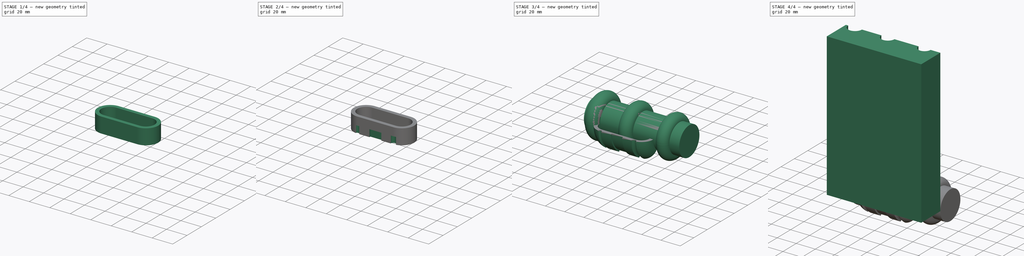
[diagram: build sequence overview — one tinted view per stage of 4, left to right]
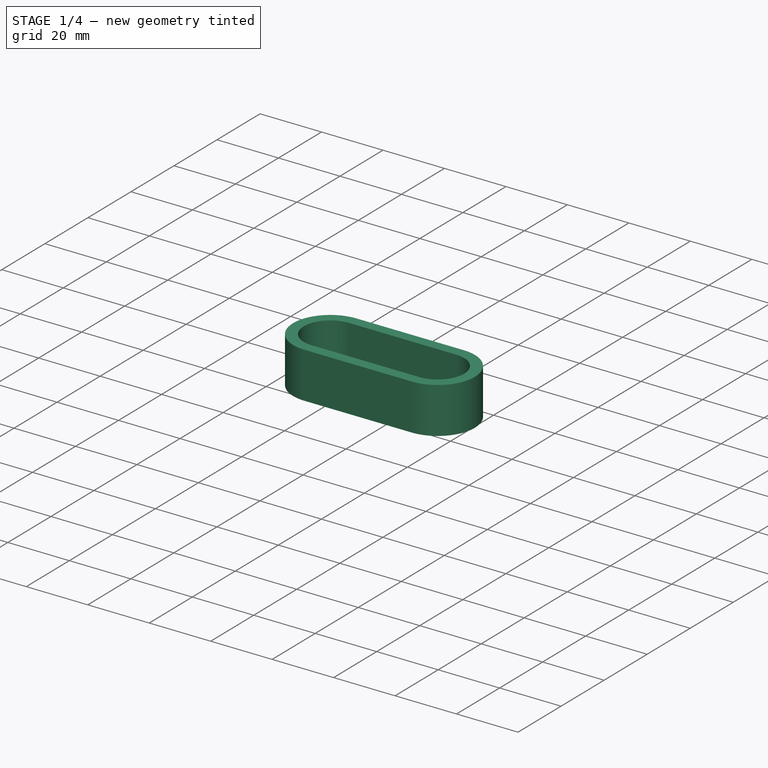
[diagram: stage 1 of 4 — iso view after this stage's code; geometry added in this stage tinted green]
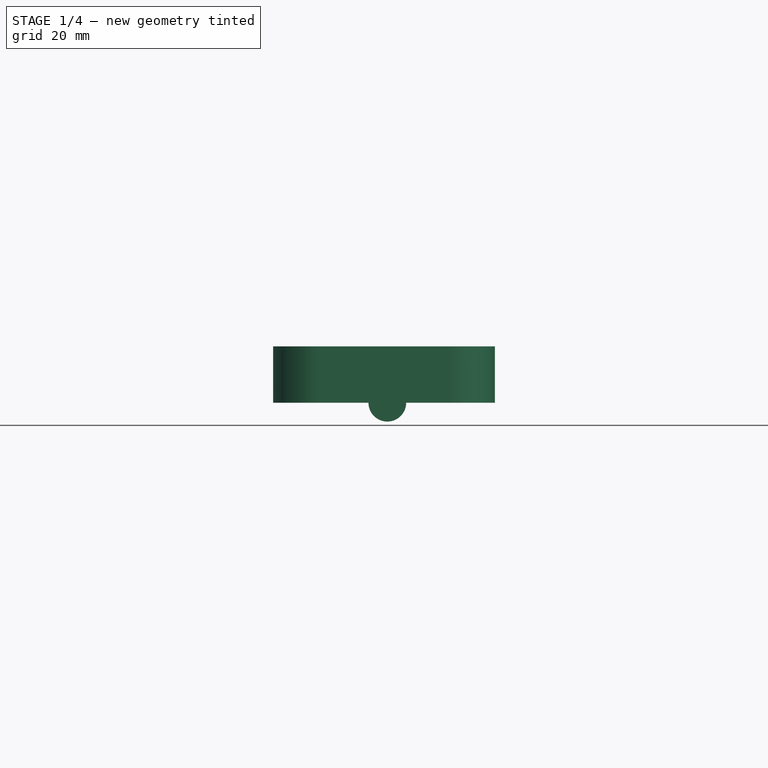
[diagram: stage 1 of 4 — front view after this stage's code; geometry added in this stage tinted green]
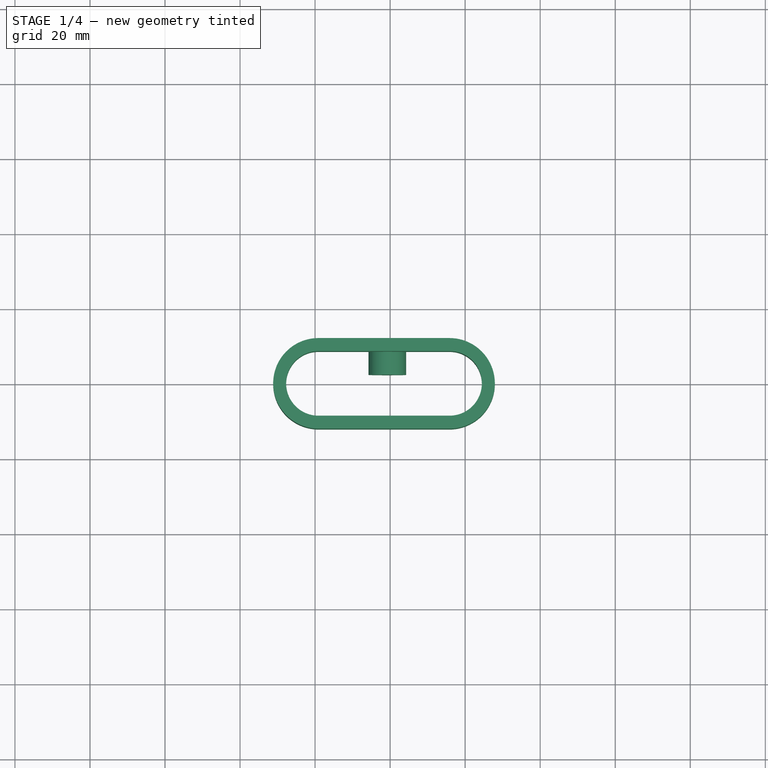
[diagram: stage 1 of 4 — top view after this stage's code; geometry added in this stage tinted green]
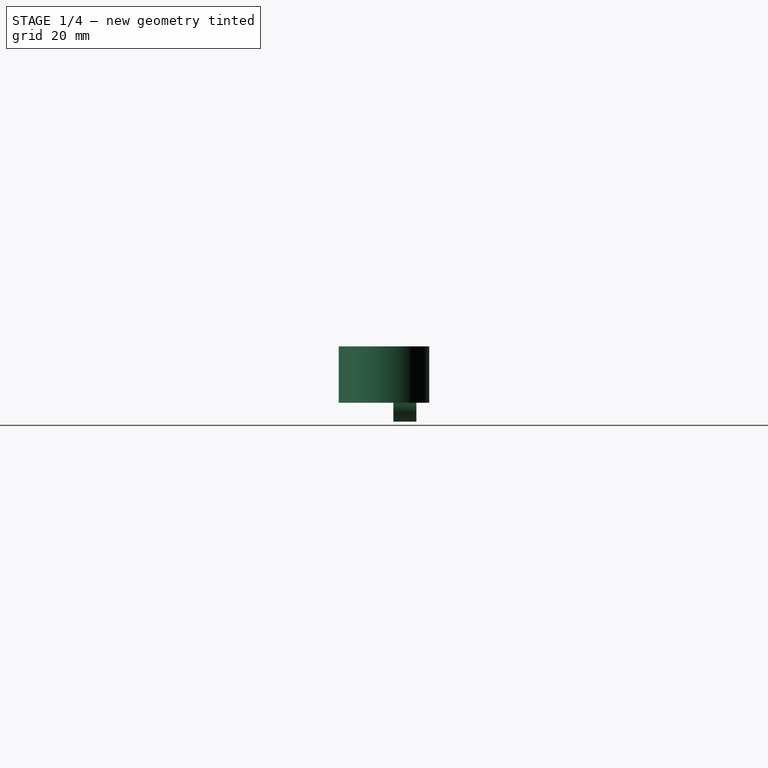
[diagram: stage 1 of 4 — right view after this stage's code; geometry added in this stage tinted green]
FCSTD DOCUMENT  (FreeCAD 0.21RUnknown)
Label: part8.2
License: All rights reserved
LicenseURL: http://en.wikipedia.org/wiki/All_rights_reserved
objects: Part::FeaturePython×12, Sketcher::SketchObject×7, Part::Revolution×5, Part::Extrusion×3, Part::Feature×3, PartDesign::SubShapeBinder×2, Part::Cut×2, Image::ImagePlane×1, App::DocumentObjectGroup×1, Part::Loft×1, Part::Compound×1, Part::Sphere×1
note: 37 computed .brp shape members not serialized (recipe doc carries the construction recipe); baked Part::Feature solids carry a one-line shape summary decoded from their .brp

FEATURE [Sketcher::SketchObject] Sketch004
  FullyConstrained = false
  sketch-geometry (8):
    g0: ArcOfCircle CenterX=-19.0999 CenterY=0 CenterZ=0 NormalX=0 NormalY=0 NormalZ=1 AngleXU=0 Radius=12.0754 StartAngle=1.5708 EndAngle=4.71239
    g1: ArcOfCircle CenterX=15.8367 CenterY=-3e-16 CenterZ=0 NormalX=0 NormalY=0 NormalZ=1 AngleXU=0 Radius=12.0754 StartAngle=4.71239 EndAngle=7.85398
    g2: LineSegment StartX=-19.0999 StartY=-12.0754 StartZ=0 EndX=15.8367 EndY=-12.0754 EndZ=0
    g3: LineSegment StartX=15.8367 StartY=12.0754 StartZ=0 EndX=-19.0999 EndY=12.0754 EndZ=0
    g4: ArcOfCircle CenterX=-19.0999 CenterY=0 CenterZ=0 NormalX=0 NormalY=0 NormalZ=1 AngleXU=0 Radius=8.61517 StartAngle=1.5708 EndAngle=4.71239
    g5: ArcOfCircle CenterX=15.8367 CenterY=-3e-16 CenterZ=0 NormalX=0 NormalY=0 NormalZ=1 AngleXU=0 Radius=8.61517 StartAngle=4.71239 EndAngle=7.85398
    g6: LineSegment StartX=-19.0999 StartY=-8.61517 StartZ=0 EndX=15.8367 EndY=-8.61517 EndZ=0
    g7: LineSegment StartX=15.8367 StartY=8.61517 StartZ=0 EndX=-19.0999 EndY=8.61517 EndZ=0
  constraints (14):
    c: Tangent(g0,g2) = -1.5708
    c: Tangent(g2,g1) = -1.5708
    c: Tangent(g1,g3) = -1.5708
    c: Tangent(g3,g0) = -1.5708
    c: Equal(g0,g1)
    c: Horizontal(g2)
    c: Tangent(g4,g6) = -1.5708
    c: Tangent(g6,g5) = -1.5708
    c: Tangent(g5,g7) = -1.5708
    c: Tangent(g7,g4) = -1.5708
    c: Equal(g4,g5)
    c: Coincident(g4,g0)
    c: Coincident(g5,g1)
    c: PointOnObject(g0,g-1)
FEATURE [Part::Extrusion] Extrude001
  Base = -> Sketch004
  Dir = (0,0,1)
  DirMode = 2
  FaceMakerClass = Part::FaceMakerBullseye
  LengthFwd = 15
  LengthRev = 0
  Solid = true
  Symmetric = false
FEATURE [Sketcher::SketchObject] Sketch006
  FullyConstrained = false
  sketch-geometry (4):
    g0: LineSegment StartX=-5.7726 StartY=8.64052 StartZ=0 EndX=-0.745931 EndY=8.64052 EndZ=0
    g1: LineSegment StartX=-0.745931 StartY=8.64052 StartZ=0 EndX=-0.745931 EndY=2.48719 EndZ=0
    g2: LineSegment StartX=-0.745931 StartY=2.48719 StartZ=0 EndX=-5.7726 EndY=2.48719 EndZ=0
    g3: LineSegment StartX=-5.7726 StartY=2.48719 StartZ=0 EndX=-5.7726 EndY=8.64052 EndZ=0
  constraints (8):
    c: Coincident(g0,g1)
    c: Coincident(g1,g2)
    c: Coincident(g2,g3)
    c: Coincident(g3,g0)
    c: Horizontal(g0)
    c: Horizontal(g2)
    c: Vertical(g1)
    c: Vertical(g3)
FEATURE [Part::Revolution] Revolve004
  Angle = 360
  Axis = (0,-1,0)
  AxisLink = -> Sketch006 [Edge2]
  Base = (-0.745931,2.48719,0)
  FaceMakerClass = Part::FaceMakerBullseye
  Solid = true
  Source = -> Sketch006
  Symmetric = false
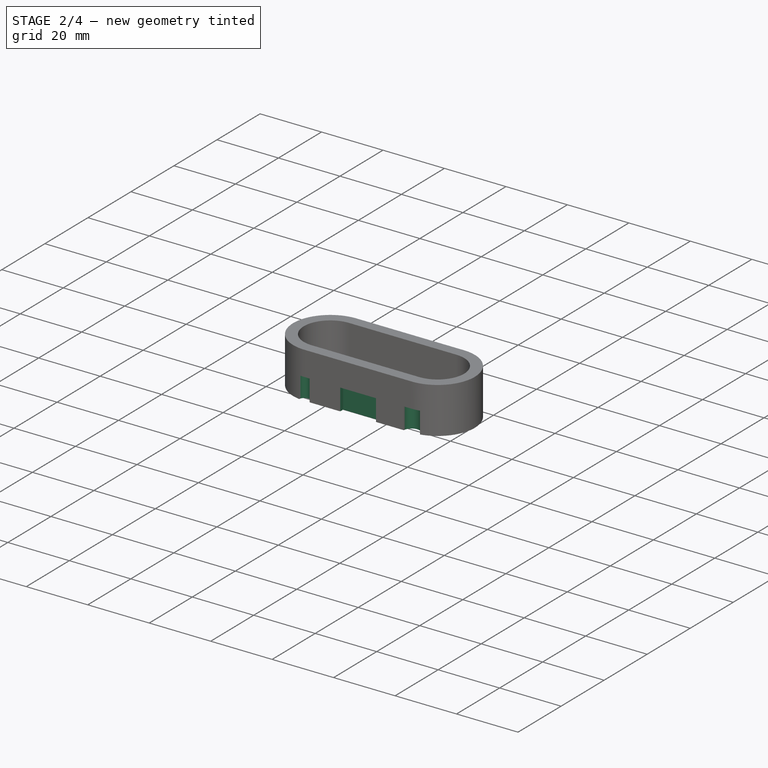
[diagram: stage 2 of 4 — iso view after this stage's code; geometry added in this stage tinted green]
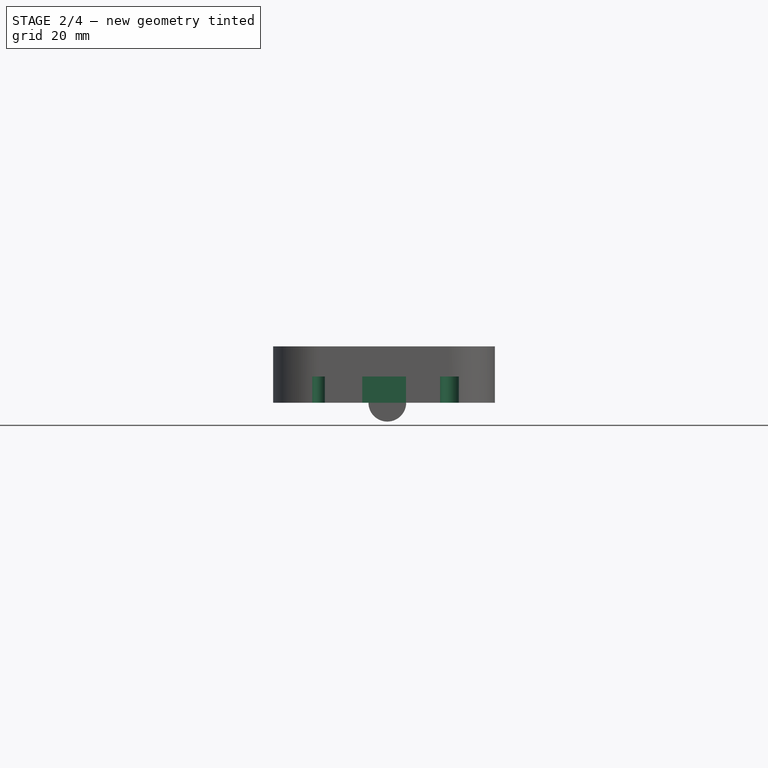
[diagram: stage 2 of 4 — front view after this stage's code; geometry added in this stage tinted green]
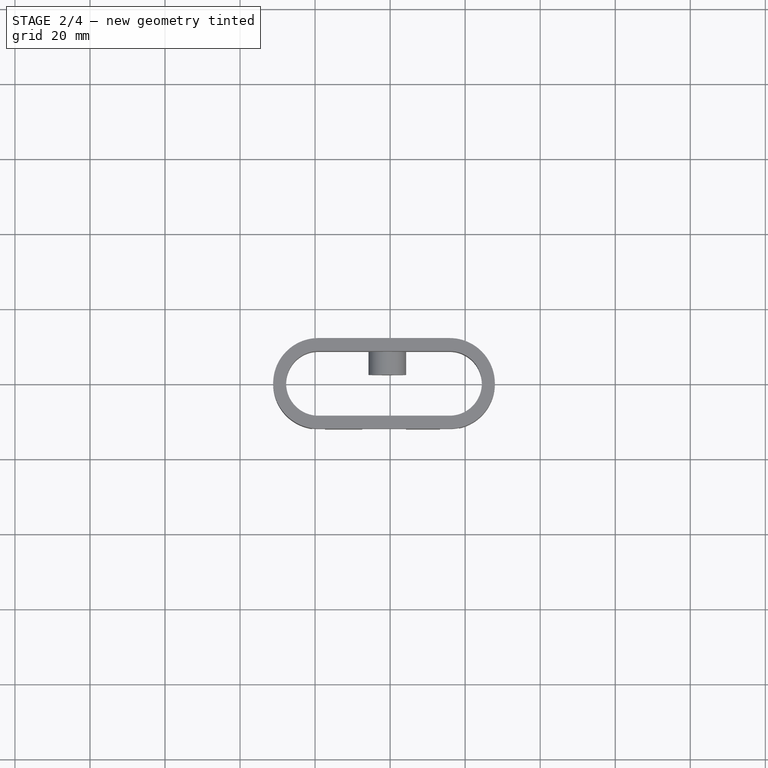
[diagram: stage 2 of 4 — top view after this stage's code; geometry added in this stage tinted green]
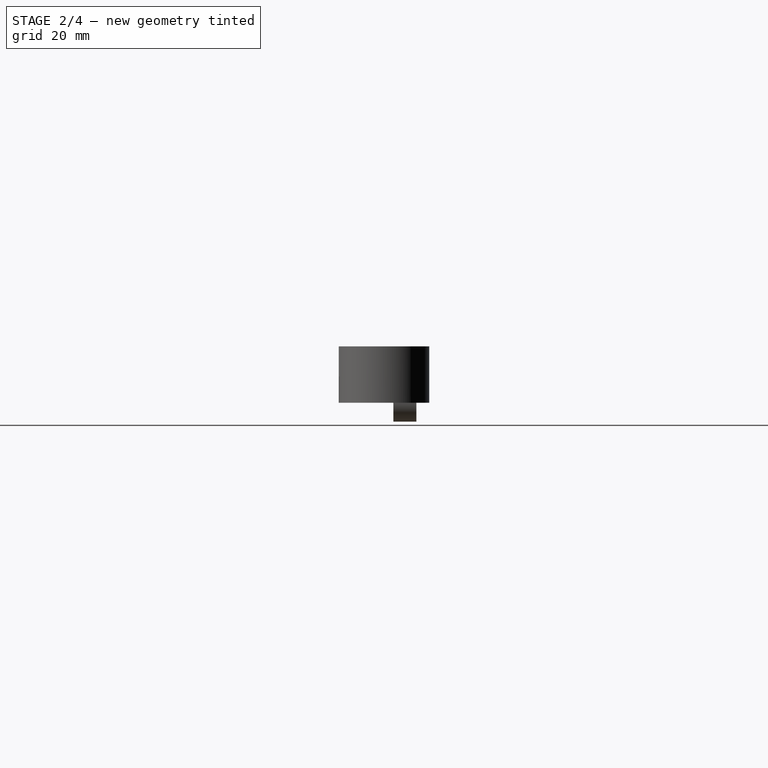
[diagram: stage 2 of 4 — right view after this stage's code; geometry added in this stage tinted green]
FEATURE [Sketcher::SketchObject] Sketch005
  ExternalGeometry = -> [Extrude001]
  FullyConstrained = false
  MapMode = 5
  Placement = pos=(0,0,0) rot=(1,0,0;3.14159rad)
  Support = -> [Extrude001]
  sketch-geometry (6):
    g0: Circle CenterX=-19.0999 CenterY=12.0754 CenterZ=0 NormalX=0 NormalY=0 NormalZ=1 AngleXU=0 Radius=1.73647
    g1: Circle CenterX=15.8367 CenterY=12.0754 CenterZ=0 NormalX=0 NormalY=0 NormalZ=1 AngleXU=0 Radius=2.53563
    g2: LineSegment StartX=-7.4203 StartY=13.9374 StartZ=0 EndX=4.21679 EndY=13.9374 EndZ=0
    g3: LineSegment StartX=4.21679 StartY=13.9374 StartZ=0 EndX=4.21679 EndY=10.7066 EndZ=0
    g4: LineSegment StartX=4.21679 StartY=10.7066 StartZ=0 EndX=-7.4203 EndY=10.7066 EndZ=0
    g5: LineSegment StartX=-7.4203 StartY=10.7066 StartZ=0 EndX=-7.4203 EndY=13.9374 EndZ=0
  constraints (10):
    c: Coincident(g0,g-4)
    c: Coincident(g1,g-5)
    c: Coincident(g2,g3)
    c: Coincident(g3,g4)
    c: Coincident(g4,g5)
    c: Coincident(g5,g2)
    c: Horizontal(g2)
    c: Horizontal(g4)
    c: Vertical(g3)
    c: Vertical(g5)
FEATURE [Part::Extrusion] Extrude004
  Base = -> Sketch005
  Dir = (0,0,1)
  DirMode = 0
  FaceMakerClass = Part::FaceMakerBullseye
  LengthFwd = 7
  LengthRev = 0
  Solid = true
  Symmetric = false
FEATURE [Part::Cut] Cut001
  Base = -> Extrude001
  Tool = -> Extrude004
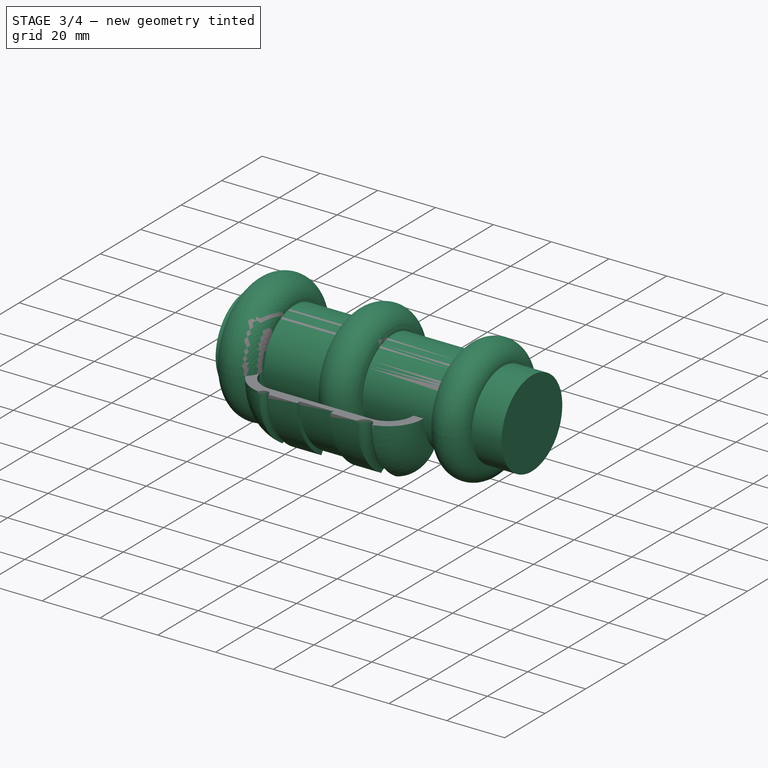
[diagram: stage 3 of 4 — iso view after this stage's code; geometry added in this stage tinted green]
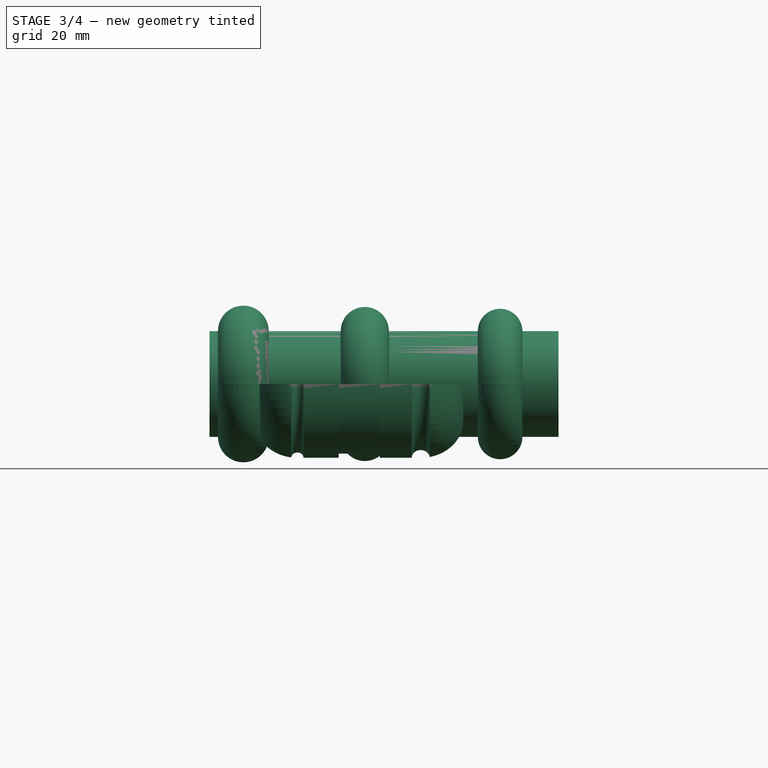
[diagram: stage 3 of 4 — front view after this stage's code; geometry added in this stage tinted green]
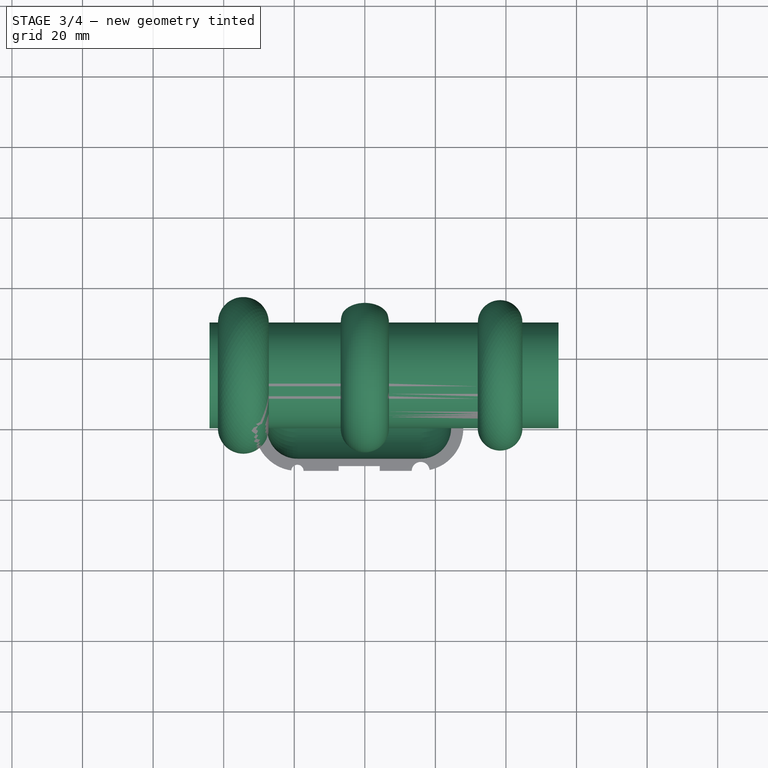
[diagram: stage 3 of 4 — top view after this stage's code; geometry added in this stage tinted green]
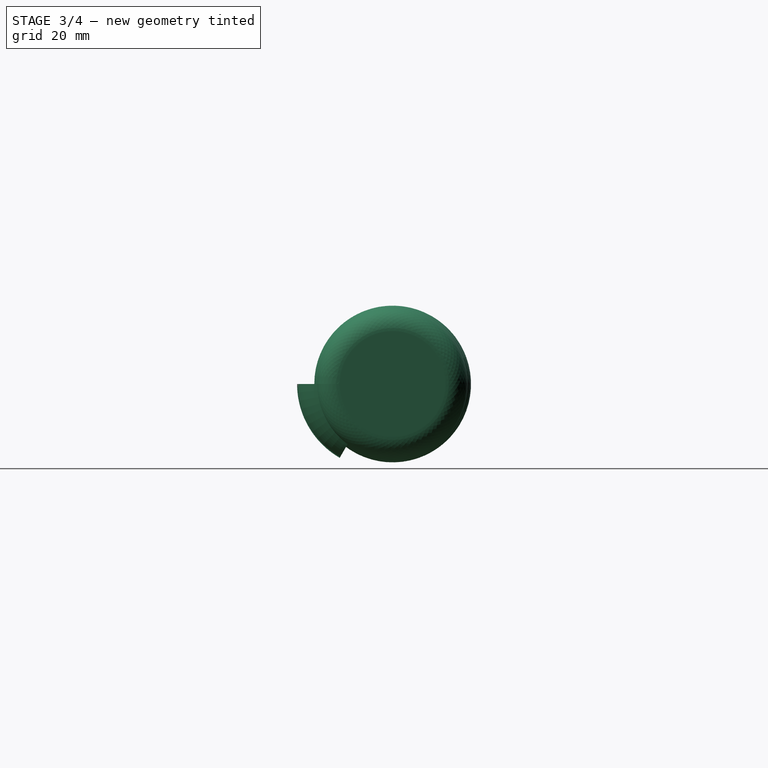
[diagram: stage 3 of 4 — right view after this stage's code; geometry added in this stage tinted green]
FEATURE [Sketcher::SketchObject] Sketch003
  FullyConstrained = false
  MapMode = 5
  Placement = pos=(0,0,0) rot=(1,0,0;3.14159rad)
  Support = -> [Extrude]
  sketch-geometry (1):
    g0: LineSegment StartX=-30.0278 StartY=-15 StartZ=0 EndX=36.5947 EndY=-15 EndZ=0
  constraints (2):
    c: Horizontal(g0)
    c: DistanceY(g0,g-1) = 15
FEATURE [PartDesign::SubShapeBinder] Binder
  BindCopyOnChange = 0
  BindMode = 0
  ClaimChildren = false
  Fuse = false
  MakeFace = true
  OffsetFill = false
  OffsetIntersection = false
  OffsetJoinType = 0
  OffsetOpenResult = false
  PartialLoad = false
  Relative = true
  Support = -> [Extrude[Edge21,Edge15,Edge18,Edge12,Edge9,Edge6,Vertex3,Edge3]]
  _Version = 2
FEATURE [Part::Revolution] Revolve002
  Angle = 360
  Axis = (1,0,0)
  AxisLink = -> Sketch003 [Edge1]
  Base = (36.5947,15,0)
  FaceMakerClass = Part::FaceMakerBullseye
  Solid = false
  Source = -> Binder
  Symmetric = false
FEATURE [Part::Feature] Face
  shape: bbox 2e-07 x 50.65 x 46.59 mm, 1 faces, 0 solids (baked)
FEATURE [Part::Feature] Face001
  shape: bbox 2e-07 x 50.65 x 46.59 mm, 1 faces, 0 solids (baked)
FEATURE [Part::Compound] Compound
  Links = -> [Revolve002,Face,Face001]
FEATURE [Part::Feature] Compound_solid  label="Compound (Solid)"
  shape: bbox 98.92 x 55.87 x 46.59 mm, 9 faces (baked)
FEATURE [Part::Sphere] Sphere
  Angle1 = -90
  Angle2 = 90
  Angle3 = 360
  AttacherType = Attacher::AttachEngine3D
  Placement = pos=(0,37.7,0) rot=(0,0,1;0rad)
  Radius = 8.1
FEATURE [Part::Cut] Cut
  Base = -> Compound_solid
  Tool = -> Sphere
FEATURE [PartDesign::SubShapeBinder] Binder001
  BindCopyOnChange = 0
  BindMode = 0
  ClaimChildren = false
  Fuse = false
  MakeFace = true
  OffsetFill = false
  OffsetIntersection = false
  OffsetJoinType = 0
  OffsetOpenResult = false
  PartialLoad = false
  Relative = true
  Support = -> [Cut001[Face2]]
  _Version = 2
FEATURE [Part::FeaturePython] Facebinder  # WARN: FeaturePython — macro-defined, semantics opaque (R4)
  Area = 436.234
  Extrusion = 0
  Faces = -> [Cut001]
  RemoveSplitter = false
  Sew = false
FEATURE [Part::Revolution] Revolve003
  Angle = 60
  Axis = (1,0,0)
  AxisLink = -> Cut001 [Edge7]
  Base = (15.8367,12.0754,0)
  FaceMakerClass = Part::FaceMakerBullseye
  Solid = false
  Source = -> Facebinder
  Symmetric = false
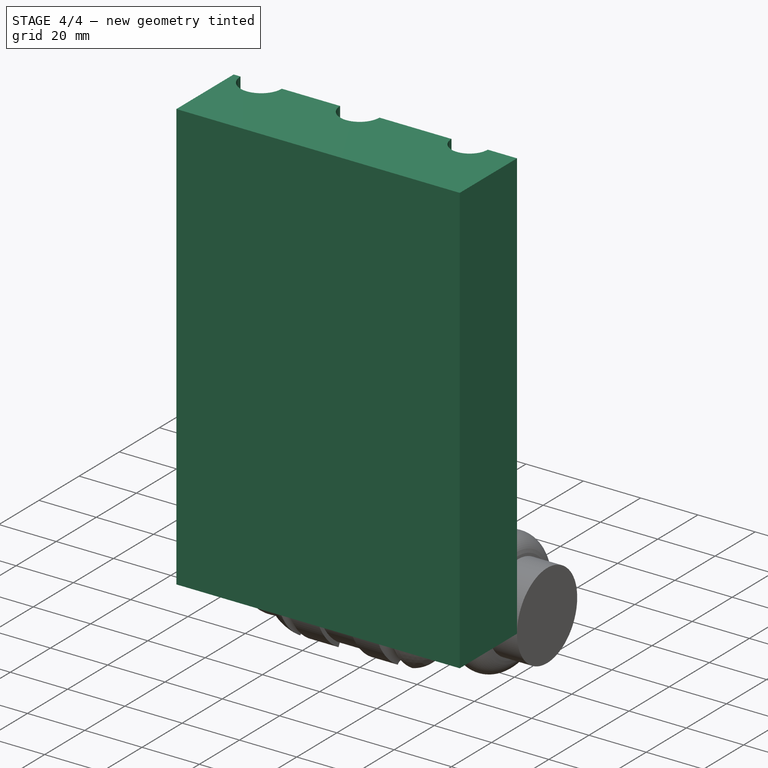
[diagram: stage 4 of 4 — iso view after this stage's code; geometry added in this stage tinted green]
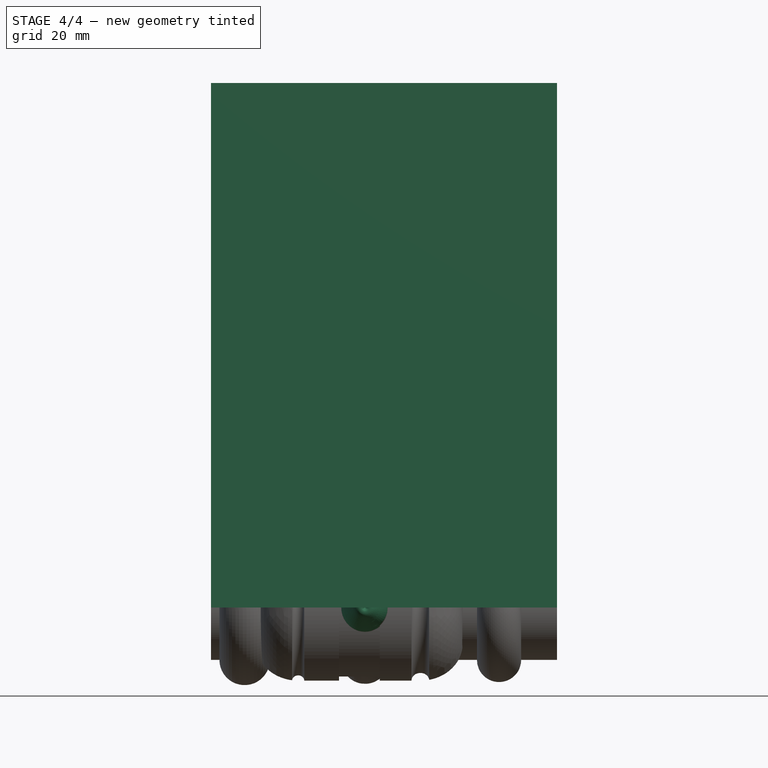
[diagram: stage 4 of 4 — front view after this stage's code; geometry added in this stage tinted green]
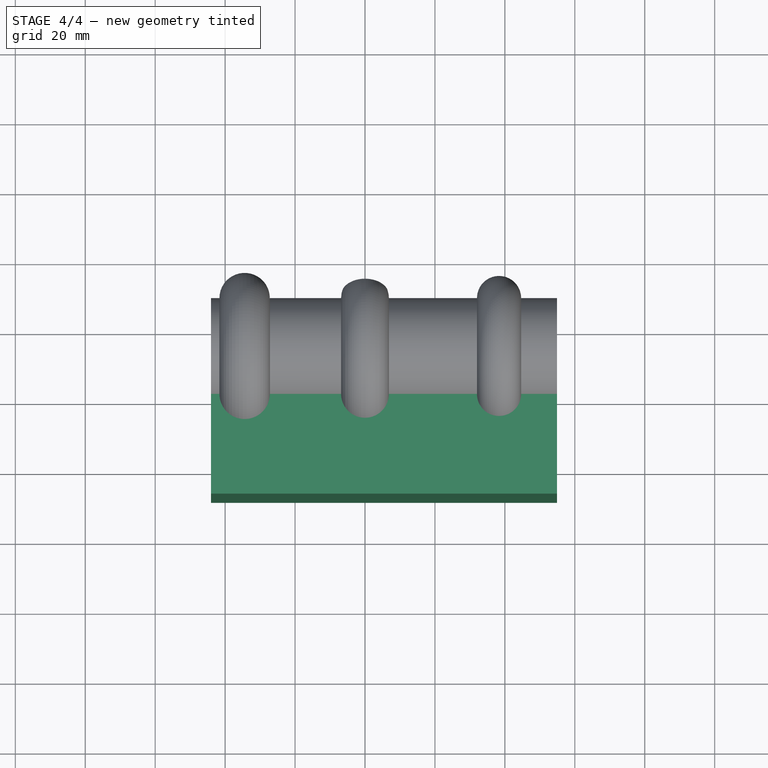
[diagram: stage 4 of 4 — top view after this stage's code; geometry added in this stage tinted green]
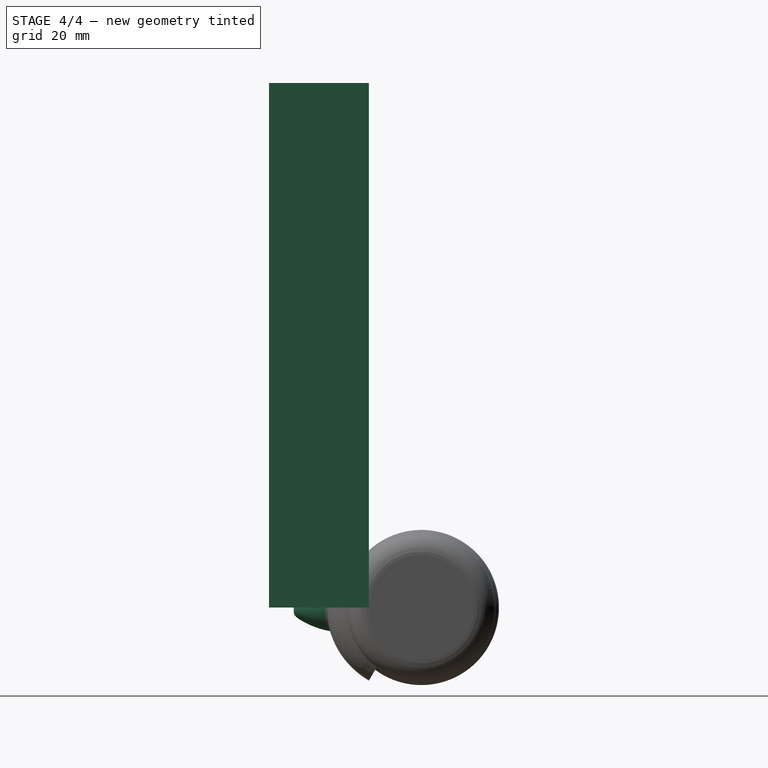
[diagram: stage 4 of 4 — right view after this stage's code; geometry added in this stage tinted green]
FEATURE [Image::ImagePlane] bowling_pin
  XSize = 32.6814
  YSize = 51.8161
FEATURE [Sketcher::SketchObject] Sketch
  FullyConstrained = false
  sketch-geometry (21):
    g0-g10: Circle x11 (B-spline internal-alignment scaffolding for g11; pole/knot coordinates omitted)
    g11: BSplineCurve PolesCount=11 KnotsCount=9 Degree=3 IsPeriodic=0
    g12-g20: GeomPoint x9 (B-spline internal-alignment scaffolding for g11; pole/knot coordinates omitted)
  constraints (6):
    c: Weight(g0) = 1
    c: PointOnObject(g11,g-2)
    c: Equal(g0, g1-g10) x10
    c: PointOnObject(g11,g-2)
    c: InternalAlignment(g0-g10 -> g11) x11
    c: InternalAlignment(g12-g20 -> g11) x9
FEATURE [Part::Revolution] Revolve  label="Revolve_bspline"
  Angle = 360
  Axis = (0,1,0)
  Base = (0,0,0)
  FaceMakerClass = Part::FaceMakerBullseye
  Solid = false
  Source = -> Sketch
  Symmetric = false
FEATURE [Sketcher::SketchObject] Sketch001
  FullyConstrained = false
  sketch-geometry (11):
    g0: GeomPoint X=-0.755041 Y=21.7869 Z=0
    g1: GeomPoint X=-3.17064 Y=20.4106 Z=0
    g2: GeomPoint X=-3.67623 Y=15.8603 Z=0
    g3: GeomPoint X=-2.74932 Y=8.52918 Z=0
    g4: GeomPoint X=-3.47961 Y=5.49564 Z=0
    g5: GeomPoint X=-5.6986 Y=0 Z=0
    g6: GeomPoint X=-6.62552 Y=-3.35221 Z=0
    g7: GeomPoint X=-7.0503 Y=-8.29075 Z=0
    g8: GeomPoint X=-3.93249 Y=-18.9643 Z=0
    g9: GeomPoint X=-2.92131 Y=-20.5373 Z=0
    g10: GeomPoint X=0 Y=-20.9867 Z=0
  constraints (2):
    c: PointOnObject(g5,g-1)
    c: PointOnObject(g10,g-2)
FEATURE [Part::Revolution] Revolve001
  Angle = 360
  Axis = (0,1,0)
  Base = (0,0,0)
  FaceMakerClass = Part::FaceMakerBullseye
  Solid = false
  Source = -> Sketch001
  Symmetric = false
FEATURE [Part::FeaturePython] Revolve001_child0  label="Revolve001.0"  # WARN: FeaturePython — macro-defined, semantics opaque (R4)
  Base = -> Revolve001
  FilterType = 1
  Invert = false
  OverrideMaxVal = 0
  WindowFrom = 80
  WindowTo = 100
  items = 0
FEATURE [Part::FeaturePython] Revolve001_child1  label="Revolve001.1"  # WARN: FeaturePython — macro-defined, semantics opaque (R4)
  Base = -> Revolve001
  FilterType = 1
  Invert = false
  OverrideMaxVal = 0
  WindowFrom = 80
  WindowTo = 100
  items = 1
FEATURE [Part::FeaturePython] Revolve001_child2  label="Revolve001.2"  # WARN: FeaturePython — macro-defined, semantics opaque (R4)
  Base = -> Revolve001
  FilterType = 1
  Invert = false
  OverrideMaxVal = 0
  WindowFrom = 80
  WindowTo = 100
  items = 2
FEATURE [Part::FeaturePython] Revolve001_child3  label="Revolve001.3"  # WARN: FeaturePython — macro-defined, semantics opaque (R4)
  Base = -> Revolve001
  FilterType = 1
  Invert = false
  OverrideMaxVal = 0
  WindowFrom = 80
  WindowTo = 100
  items = 3
FEATURE [Part::FeaturePython] Revolve001_child4  label="Revolve001.4"  # WARN: FeaturePython — macro-defined, semantics opaque (R4)
  Base = -> Revolve001
  FilterType = 1
  Invert = false
  OverrideMaxVal = 0
  WindowFrom = 80
  WindowTo = 100
  items = 4
FEATURE [Part::FeaturePython] Revolve001_child5  label="Revolve001.5"  # WARN: FeaturePython — macro-defined, semantics opaque (R4)
  Base = -> Revolve001
  FilterType = 1
  Invert = false
  OverrideMaxVal = 0
  WindowFrom = 80
  WindowTo = 100
  items = 5
FEATURE [Part::FeaturePython] Revolve001_child6  label="Revolve001.6"  # WARN: FeaturePython — macro-defined, semantics opaque (R4)
  Base = -> Revolve001
  FilterType = 1
  Invert = false
  OverrideMaxVal = 0
  WindowFrom = 80
  WindowTo = 100
  items = 6
FEATURE [Part::FeaturePython] Revolve001_child7  label="Revolve001.7"  # WARN: FeaturePython — macro-defined, semantics opaque (R4)
  Base = -> Revolve001
  FilterType = 1
  Invert = false
  OverrideMaxVal = 0
  WindowFrom = 80
  WindowTo = 100
  items = 7
FEATURE [Part::FeaturePython] Revolve001_child8  label="Revolve001.8"  # WARN: FeaturePython — macro-defined, semantics opaque (R4)
  Base = -> Revolve001
  FilterType = 1
  Invert = false
  OverrideMaxVal = 0
  WindowFrom = 80
  WindowTo = 100
  items = 8
FEATURE [Part::FeaturePython] Revolve001_child9  label="Revolve001.9"  # WARN: FeaturePython — macro-defined, semantics opaque (R4)
  Base = -> Revolve001
  FilterType = 1
  Invert = false
  OverrideMaxVal = 0
  WindowFrom = 80
  WindowTo = 100
  items = 9
FEATURE [Part::FeaturePython] Revolve001_child10  label="Revolve001.10"  # WARN: FeaturePython — macro-defined, semantics opaque (R4)
  Base = -> Revolve001
  FilterType = 1
  Invert = false
  OverrideMaxVal = 0
  WindowFrom = 80
  WindowTo = 100
  items = 10
FEATURE [App::DocumentObjectGroup] GrExplode_Revolve001  label="Exploded Revolve001_points"
  Group = -> [Revolve001_child0,Revolve001_child1,Revolve001_child2,Revolve001_child3,Revolve001_child4,Revolve001_child5,Revolve001_child6,Revolve001_child7,Revolve001_child8,Revolve001_child9,Revolve001_child10]
FEATURE [Part::Loft] Loft
  Closed = false
  MaxDegree = 5
  Ruled = false
  Sections = -> [Revolve001_child0,Revolve001_child1,Revolve001_child2,Revolve001_child3,Revolve001_child4,Revolve001_child5,Revolve001_child6,Revolve001_child7,Revolve001_child8,Revolve001_child9,Revolve001_child10]
  Solid = true
FEATURE [Sketcher::SketchObject] Sketch002
  FullyConstrained = false
  sketch-geometry (10):
    g0: LineSegment StartX=-44.0209 StartY=0 StartZ=0 EndX=-41.626 EndY=0 EndZ=0
    g1: LineSegment StartX=54.8953 StartY=0 StartZ=0 EndX=54.8953 EndY=-28.5552 EndZ=0
    g2: LineSegment StartX=54.8953 StartY=-28.5552 StartZ=0 EndX=-44.0209 EndY=-28.5552 EndZ=0
    g3: LineSegment StartX=-44.0209 StartY=-28.5552 StartZ=0 EndX=-44.0209 EndY=0 EndZ=0
    g4: ArcOfCircle CenterX=-34.4214 CenterY=0 CenterZ=0 NormalX=0 NormalY=0 NormalZ=1 AngleXU=0 Radius=7.20459 StartAngle=3.14159 EndAngle=6.28319
    g5: ArcOfCircle CenterX=0 CenterY=0 CenterZ=0 NormalX=0 NormalY=0 NormalZ=1 AngleXU=0 Radius=6.83805 StartAngle=3.14159 EndAngle=6.28319
    g6: ArcOfCircle CenterX=38.3397 CenterY=0 CenterZ=0 NormalX=0 NormalY=0 NormalZ=1 AngleXU=0 Radius=6.32466 StartAngle=3.14159 EndAngle=6.28319
    g7: LineSegment StartX=-27.2168 StartY=-1.8e-15 StartZ=0 EndX=-6.83805 EndY=8e-16 EndZ=0
    g8: LineSegment StartX=6.83805 StartY=-1.7e-15 StartZ=0 EndX=32.0151 EndY=8e-16 EndZ=0
    g9: LineSegment StartX=44.6644 StartY=-1.5e-15 StartZ=0 EndX=54.8953 EndY=0 EndZ=0
  constraints (18):
    c: Coincident(g9,g1)
    c: Coincident(g1,g2)
    c: Coincident(g2,g3)
    c: Coincident(g3,g0)
    c: Horizontal(g0)
    c: Horizontal(g2)
    c: Vertical(g1)
    c: Vertical(g3)
    c: PointOnObject(g0,g-1)
    c: PointOnObject(g4,g0)
    c: Coincident(g5,g-1)
    c: PointOnObject(g6,g0)
    c: Coincident(g0,g4)
    c: Coincident(g7,g4)
    c: Coincident(g7,g5)
    c: Coincident(g8,g5)
    c: Coincident(g8,g6)
    c: Coincident(g9,g6)
FEATURE [Part::Extrusion] Extrude
  Base = -> Sketch002
  Dir = (0,0,1)
  DirMode = 2
  FaceMakerClass = Part::FaceMakerBullseye
  LengthFwd = 150
  LengthRev = 0
  Solid = true
  Symmetric = false
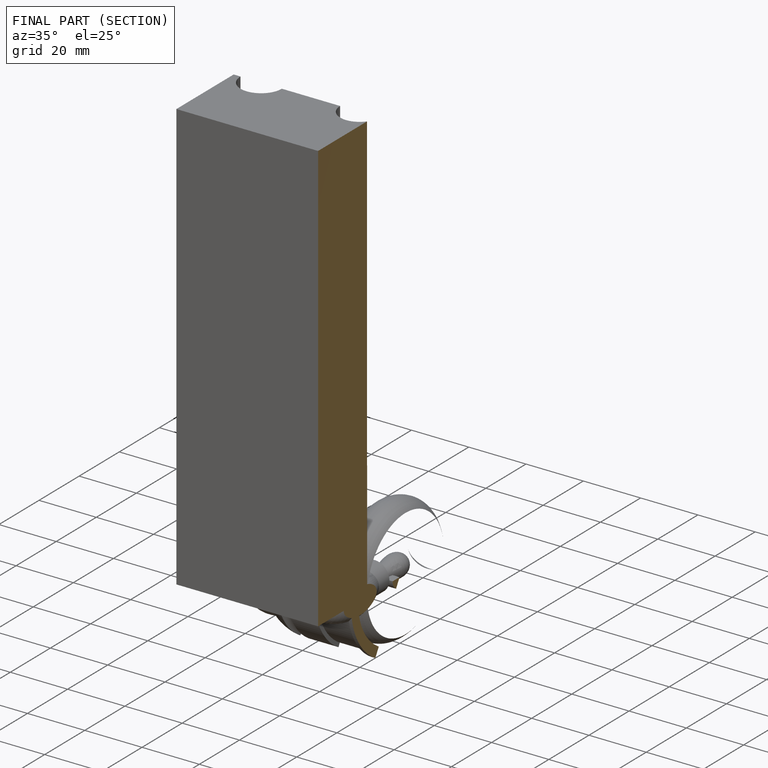
[diagram: finished part — half-section view (interior)]
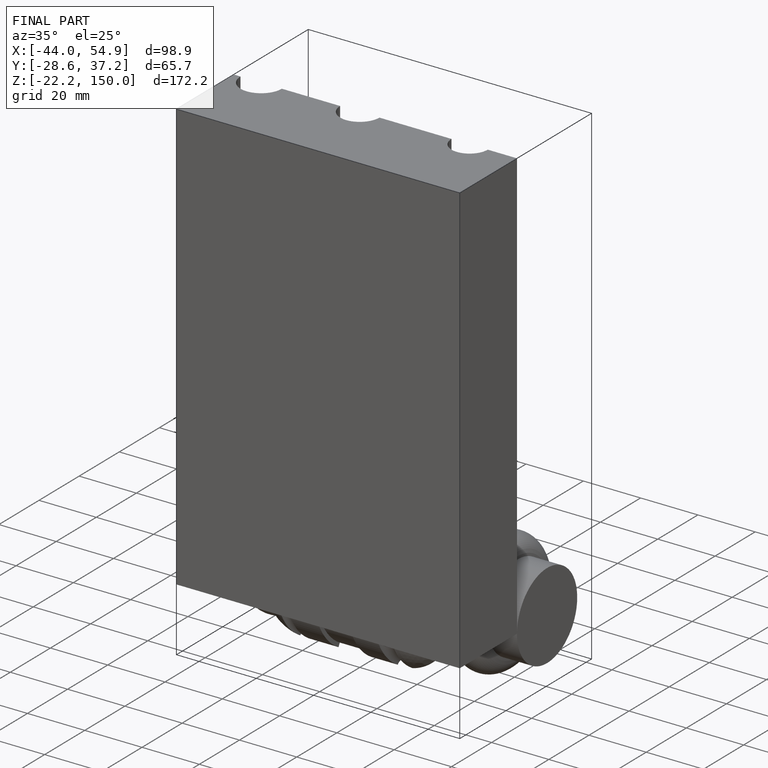
[diagram: finished part — iso view with bounding-box wireframe]
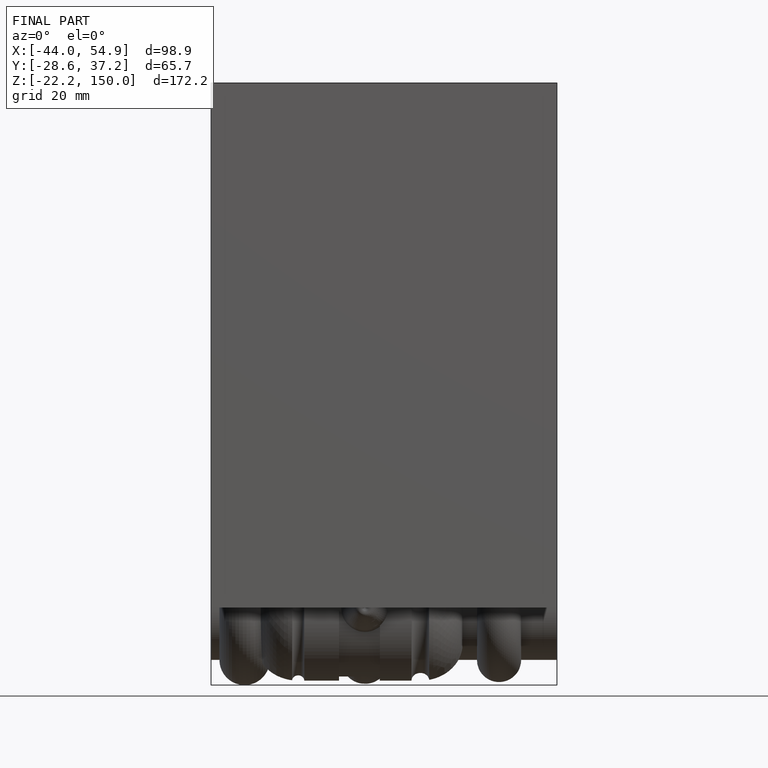
[diagram: finished part — front view with bounding-box wireframe]
